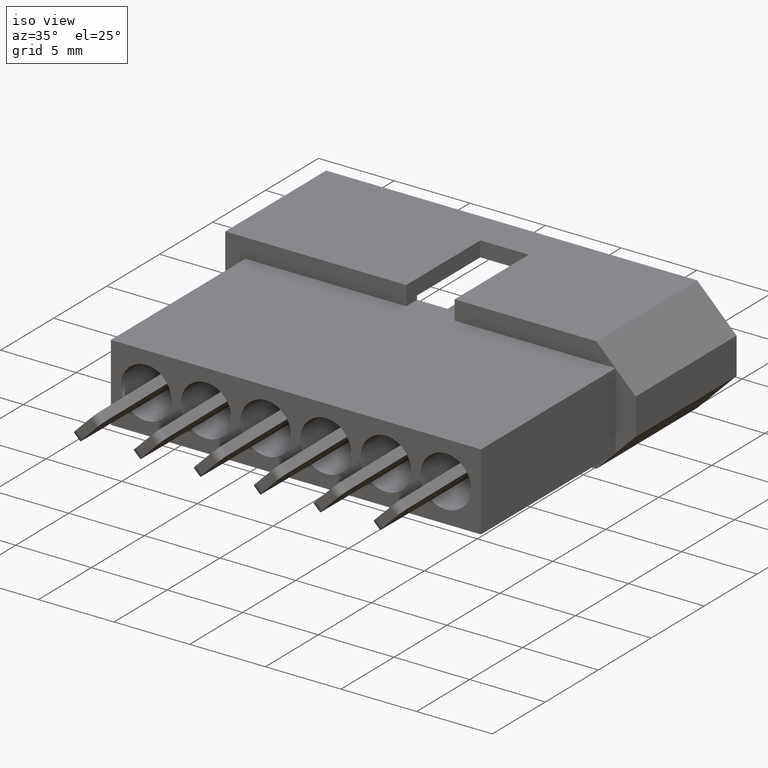
[diagram: clean part render]
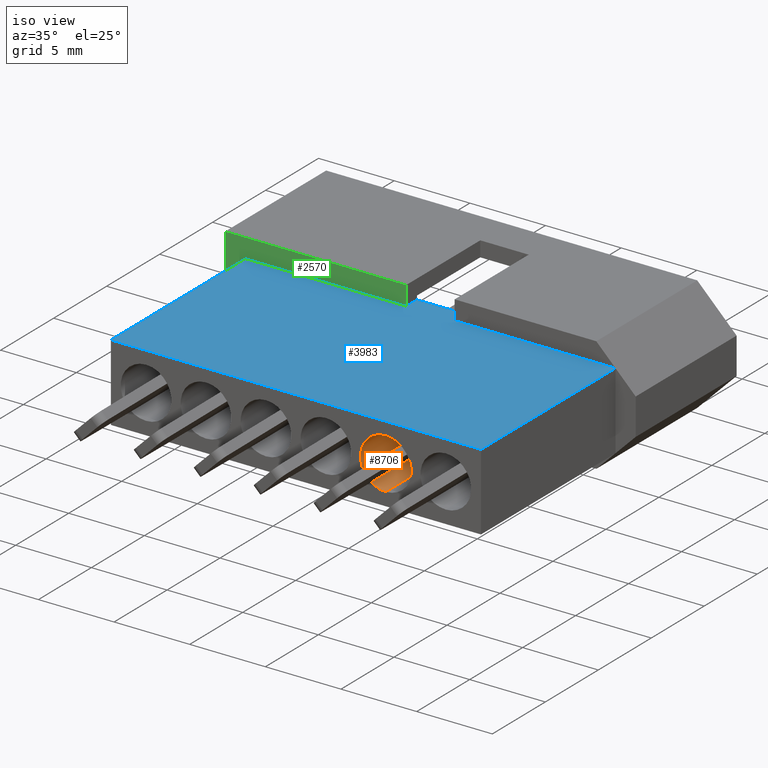
[diagram: same view with three faces highlighted in distinct colors, each labeled with its STEP entity id]
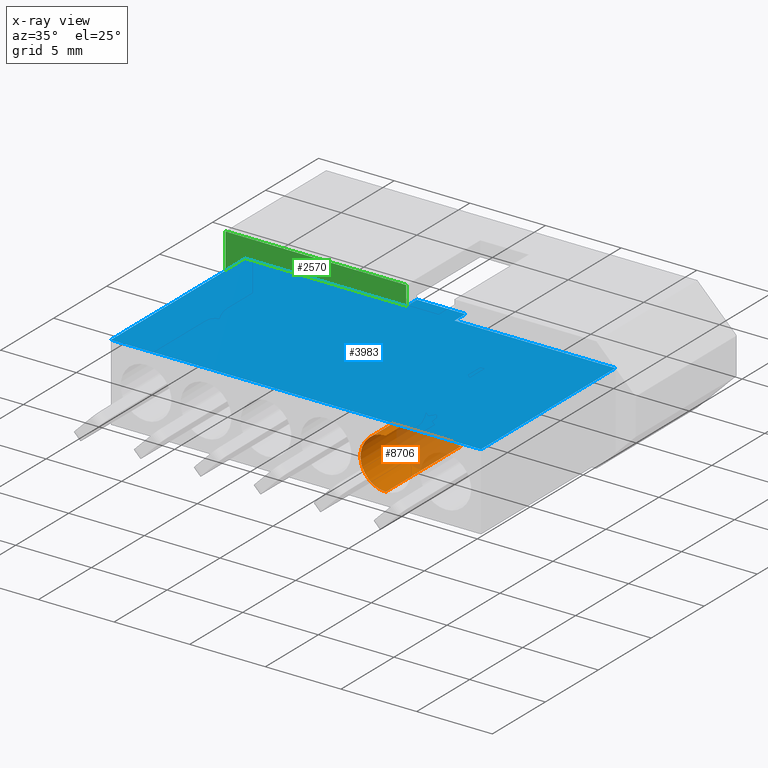
[diagram: x-ray of the same camera — body ghosted, the three highlighted faces saturated]
A machine part, iso view with three faces highlighted in distinct colors.
The next image is the same camera in x-ray (body ghosted, the three faces saturated) — at least one of them is partly hidden behind the body in this view.
Their STEP definitions:

[orange] entity #8706 — the highlighted cylindrical surface (edge-blend (fillet) strip) has radius 1.6764 mm, axis along (0, 1, 0).
#689 = VERTEX_POINT ( 'NONE', #4294 ) ;
#1301 = AXIS2_PLACEMENT_3D ( 'NONE', #4681, #1579, #6078 ) ;
#1579 = DIRECTION ( 'NONE',  ( -0.0000000000000000000, 1.000000000000000000, 1.232274823563231000E-016 ) ) ;
#1958 = DIRECTION ( 'NONE',  ( 0.0000000000000000000, 0.0000000000000000000, 1.000000000000000000 ) ) ;
#2630 = CIRCLE ( 'NONE', #1301, 1.676399999999999700 ) ;
#2684 = VERTEX_POINT ( 'NONE', #9080 ) ;
#2982 = CARTESIAN_POINT ( 'NONE',  ( 15.84959999999999900, -5.588000000000001000, -9.737026951175853700E-016 ) ) ;
#3110 = EDGE_LOOP ( 'NONE', ( #7104, #6249, #5355, #8156 ) ) ;
#3139 = AXIS2_PLACEMENT_3D ( 'NONE', #3407, #4778, #1958 ) ;
#3302 = CARTESIAN_POINT ( 'NONE',  ( 15.84959999999999900, 2.313668333221628800, 1.676399999999999700 ) ) ;
#3407 = CARTESIAN_POINT ( 'NONE',  ( 15.84959999999999900, 2.313668333221628800, 0.0000000000000000000 ) ) ;
#3471 = LINE ( 'NONE', #7409, #8153 ) ;
#3711 = DIRECTION ( 'NONE',  ( 0.0000000000000000000, 0.0000000000000000000, 1.000000000000000000 ) ) ;
#3860 = EDGE_CURVE ( 'NONE', #6942, #5809, #3471, .T. ) ;
#4124 = CIRCLE ( 'NONE', #4801, 1.676399999999999900 ) ;
#4127 = CARTESIAN_POINT ( 'NONE',  ( 15.84959999999999900, -5.588000000000001000, -1.676400000000000600 ) ) ;
#4294 = CARTESIAN_POINT ( 'NONE',  ( 15.84959999999999900, -5.588000000000001000, 1.676399999999999200 ) ) ;
#4663 = DIRECTION ( 'NONE',  ( -0.0000000000000000000, 1.000000000000000000, 1.232274823563231000E-016 ) ) ;
#4681 = CARTESIAN_POINT ( 'NONE',  ( 15.84959999999999900, -12.69999999999999900, -1.850096549635755000E-015 ) ) ;
#4778 = DIRECTION ( 'NONE',  ( -0.0000000000000000000, 1.000000000000000000, 1.232274823563231000E-016 ) ) ;
#4801 = AXIS2_PLACEMENT_3D ( 'NONE', #2982, #7964, #3711 ) ;
#5140 = EDGE_CURVE ( 'NONE', #5809, #689, #4124, .T. ) ;
#5355 = ORIENTED_EDGE ( 'NONE', *, *, #5140, .T. ) ;
#5809 = VERTEX_POINT ( 'NONE', #4127 ) ;
#6078 = DIRECTION ( 'NONE',  ( 0.0000000000000000000, 0.0000000000000000000, 1.000000000000000000 ) ) ;
#6111 = CYLINDRICAL_SURFACE ( 'NONE', #3139, 1.676399999999999700 ) ;
#6249 = ORIENTED_EDGE ( 'NONE', *, *, #3860, .T. ) ;
#6834 = EDGE_CURVE ( 'NONE', #2684, #689, #7005, .T. ) ;
#6942 = VERTEX_POINT ( 'NONE', #8434 ) ;
#7005 = LINE ( 'NONE', #3302, #7889 ) ;
#7104 = ORIENTED_EDGE ( 'NONE', *, *, #9001, .F. ) ;
#7409 = CARTESIAN_POINT ( 'NONE',  ( 15.84959999999999900, 2.313668333221628800, -1.676399999999999700 ) ) ;
#7889 = VECTOR ( 'NONE', #8277, 1000.000000000000000 ) ;
#7964 = DIRECTION ( 'NONE',  ( -0.0000000000000000000, 1.000000000000000000, 1.232274823563231000E-016 ) ) ;
#7983 = FACE_OUTER_BOUND ( 'NONE', #3110, .T. ) ;
#8153 = VECTOR ( 'NONE', #4663, 1000.000000000000000 ) ;
#8156 = ORIENTED_EDGE ( 'NONE', *, *, #6834, .F. ) ;
#8277 = DIRECTION ( 'NONE',  ( -0.0000000000000000000, 1.000000000000000000, 1.232274823563231000E-016 ) ) ;
#8434 = CARTESIAN_POINT ( 'NONE',  ( 15.84959999999999900, -12.69999999999999900, -1.676400000000001700 ) ) ;
#8706 = ADVANCED_FACE ( 'NONE', ( #7983 ), #6111, .F. ) ;
#9001 = EDGE_CURVE ( 'NONE', #6942, #2684, #2630, .T. ) ;
#9080 = CARTESIAN_POINT ( 'NONE',  ( 15.84959999999999900, -12.69999999999999900, 1.676399999999997900 ) ) ;

[blue] entity #3983 — the highlighted planar face has unit normal (0, 0, 1).
#53 = CARTESIAN_POINT ( 'NONE',  ( 11.50620000000000200, 1.015999999999999600, 2.539999999999999600 ) ) ;
#76 = DIRECTION ( 'NONE',  ( 1.000000000000000000, 0.0000000000000000000, 0.0000000000000000000 ) ) ;
#194 = DIRECTION ( 'NONE',  ( 0.0000000000000000000, 1.000000000000000000, 0.0000000000000000000 ) ) ;
#251 = VECTOR ( 'NONE', #3032, 1000.000000000000000 ) ;
#342 = DIRECTION ( 'NONE',  ( 1.000000000000000000, 0.0000000000000000000, 0.0000000000000000000 ) ) ;
#416 = LINE ( 'NONE', #4302, #729 ) ;
#691 = VERTEX_POINT ( 'NONE', #1391 ) ;
#692 = CARTESIAN_POINT ( 'NONE',  ( -2.324100000000000100, -12.69999999999999900, 2.540000000000000000 ) ) ;
#693 = LINE ( 'NONE', #8707, #251 ) ;
#729 = VECTOR ( 'NONE', #9218, 1000.000000000000000 ) ;
#730 = EDGE_CURVE ( 'NONE', #6080, #915, #1080, .T. ) ;
#915 = VERTEX_POINT ( 'NONE', #4080 ) ;
#1044 = CARTESIAN_POINT ( 'NONE',  ( 8.305799999999992500, 0.0000000000000000000, 2.540000000000000000 ) ) ;
#1080 = LINE ( 'NONE', #7389, #2081 ) ;
#1189 = LINE ( 'NONE', #8537, #4780 ) ;
#1375 = VECTOR ( 'NONE', #6408, 1000.000000000000000 ) ;
#1391 = CARTESIAN_POINT ( 'NONE',  ( 22.13610000000001300, 0.0000000000000000000, 2.539999999999999600 ) ) ;
#1521 = LINE ( 'NONE', #4566, #3321 ) ;
#1683 = VERTEX_POINT ( 'NONE', #1044 ) ;
#2009 = ORIENTED_EDGE ( 'NONE', *, *, #730, .F. ) ;
#2039 = VERTEX_POINT ( 'NONE', #53 ) ;
#2081 = VECTOR ( 'NONE', #194, 1000.000000000000000 ) ;
#2159 = CARTESIAN_POINT ( 'NONE',  ( 8.305799999999996100, 6.985000000000000300, 2.539999999999999600 ) ) ;
#2526 = EDGE_CURVE ( 'NONE', #4598, #2039, #693, .T. ) ;
#2552 = DIRECTION ( 'NONE',  ( 1.000000000000000000, 0.0000000000000000000, -0.0000000000000000000 ) ) ;
#3032 = DIRECTION ( 'NONE',  ( 1.000000000000000000, 0.0000000000000000000, 0.0000000000000000000 ) ) ;
#3321 = VECTOR ( 'NONE', #342, 1000.000000000000000 ) ;
#3370 = VECTOR ( 'NONE', #8263, 1000.000000000000000 ) ;
#3459 = ORIENTED_EDGE ( 'NONE', *, *, #5252, .T. ) ;
#3479 = ORIENTED_EDGE ( 'NONE', *, *, #8275, .F. ) ;
#3620 = EDGE_CURVE ( 'NONE', #5542, #2039, #4923, .T. ) ;
#3983 = ADVANCED_FACE ( 'NONE', ( #8812 ), #8324, .T. ) ;
#3991 = ORIENTED_EDGE ( 'NONE', *, *, #8625, .T. ) ;
#4080 = CARTESIAN_POINT ( 'NONE',  ( -2.324100000000000100, 0.0000000000000000000, 2.540000000000000000 ) ) ;
#4164 = EDGE_LOOP ( 'NONE', ( #3479, #2009, #3991, #4817, #9003, #6462, #8280, #3459 ) ) ;
#4302 = CARTESIAN_POINT ( 'NONE',  ( -2.324100000000000100, 0.0000000000000000000, 2.540000000000000000 ) ) ;
#4566 = CARTESIAN_POINT ( 'NONE',  ( -2.324100000000000100, -12.69999999999999900, 2.540000000000000000 ) ) ;
#4598 = VERTEX_POINT ( 'NONE', #8990 ) ;
#4679 = AXIS2_PLACEMENT_3D ( 'NONE', #9067, #6857, #2552 ) ;
#4733 = CARTESIAN_POINT ( 'NONE',  ( 11.50620000000000200, 3.919359615991196600E-016, 2.539999999999999600 ) ) ;
#4780 = VECTOR ( 'NONE', #76, 1000.000000000000000 ) ;
#4813 = CARTESIAN_POINT ( 'NONE',  ( 22.13609999999999900, -12.69999999999999900, 2.540000000000000000 ) ) ;
#4817 = ORIENTED_EDGE ( 'NONE', *, *, #5668, .T. ) ;
#4923 = LINE ( 'NONE', #5419, #3370 ) ;
#5252 = EDGE_CURVE ( 'NONE', #4598, #1683, #5634, .T. ) ;
#5419 = CARTESIAN_POINT ( 'NONE',  ( 11.50619999999999800, 6.985000000000000300, 2.539999999999999600 ) ) ;
#5542 = VERTEX_POINT ( 'NONE', #4733 ) ;
#5634 = LINE ( 'NONE', #2159, #1375 ) ;
#5668 = EDGE_CURVE ( 'NONE', #8657, #691, #6711, .T. ) ;
#6080 = VERTEX_POINT ( 'NONE', #692 ) ;
#6408 = DIRECTION ( 'NONE',  ( -2.483498176058421200E-016, -1.000000000000000000, 0.0000000000000000000 ) ) ;
#6462 = ORIENTED_EDGE ( 'NONE', *, *, #3620, .T. ) ;
#6711 = LINE ( 'NONE', #6850, #7018 ) ;
#6850 = CARTESIAN_POINT ( 'NONE',  ( 22.13609999999999900, -12.69999999999999900, 2.540000000000000000 ) ) ;
#6857 = DIRECTION ( 'NONE',  ( 0.0000000000000000000, 0.0000000000000000000, 1.000000000000000000 ) ) ;
#7018 = VECTOR ( 'NONE', #7517, 1000.000000000000000 ) ;
#7389 = CARTESIAN_POINT ( 'NONE',  ( -2.324100000000000100, -12.69999999999999900, 2.540000000000000000 ) ) ;
#7487 = EDGE_CURVE ( 'NONE', #5542, #691, #1189, .T. ) ;
#7517 = DIRECTION ( 'NONE',  ( 0.0000000000000000000, 1.000000000000000000, 0.0000000000000000000 ) ) ;
#8263 = DIRECTION ( 'NONE',  ( -4.966996352116842500E-016, 1.000000000000000000, -0.0000000000000000000 ) ) ;
#8275 = EDGE_CURVE ( 'NONE', #915, #1683, #416, .T. ) ;
#8280 = ORIENTED_EDGE ( 'NONE', *, *, #2526, .F. ) ;
#8324 = PLANE ( 'NONE',  #4679 ) ;
#8537 = CARTESIAN_POINT ( 'NONE',  ( -2.324100000000000100, 0.0000000000000000000, 2.540000000000000000 ) ) ;
#8625 = EDGE_CURVE ( 'NONE', #6080, #8657, #1521, .T. ) ;
#8657 = VERTEX_POINT ( 'NONE', #4813 ) ;
#8707 = CARTESIAN_POINT ( 'NONE',  ( 0.0000000000000000000, 1.015999999999999600, 2.539999999999999600 ) ) ;
#8812 = FACE_OUTER_BOUND ( 'NONE', #4164, .T. ) ;
#8990 = CARTESIAN_POINT ( 'NONE',  ( 8.305799999999994300, 1.015999999999999600, 2.539999999999999600 ) ) ;
#9003 = ORIENTED_EDGE ( 'NONE', *, *, #7487, .F. ) ;
#9067 = CARTESIAN_POINT ( 'NONE',  ( -2.324100000000000100, -12.69999999999999900, 2.540000000000000000 ) ) ;
#9218 = DIRECTION ( 'NONE',  ( 1.000000000000000000, 0.0000000000000000000, 0.0000000000000000000 ) ) ;

[green] entity #2570 — the highlighted planar face has unit normal (0, 1, 0).
#226 = CARTESIAN_POINT ( 'NONE',  ( 8.305799999999994300, 0.0000000000000000000, -2.539999999999999600 ) ) ;
#239 = ORIENTED_EDGE ( 'NONE', *, *, #1646, .F. ) ;
#416 = LINE ( 'NONE', #4302, #729 ) ;
#425 = VECTOR ( 'NONE', #7582, 1000.000000000000000 ) ;
#729 = VECTOR ( 'NONE', #9218, 1000.000000000000000 ) ;
#915 = VERTEX_POINT ( 'NONE', #4080 ) ;
#1003 = CARTESIAN_POINT ( 'NONE',  ( 8.305799999999994300, 0.0000000000000000000, 2.539999999999999600 ) ) ;
#1005 = VECTOR ( 'NONE', #6575, 1000.000000000000000 ) ;
#1044 = CARTESIAN_POINT ( 'NONE',  ( 8.305799999999992500, 0.0000000000000000000, 2.540000000000000000 ) ) ;
#1176 = ORIENTED_EDGE ( 'NONE', *, *, #1666, .F. ) ;
#1215 = EDGE_CURVE ( 'NONE', #2578, #2681, #7415, .T. ) ;
#1229 = VERTEX_POINT ( 'NONE', #3845 ) ;
#1302 = LINE ( 'NONE', #6299, #8671 ) ;
#1580 = DIRECTION ( 'NONE',  ( 0.0000000000000000000, 0.0000000000000000000, 1.000000000000000000 ) ) ;
#1646 = EDGE_CURVE ( 'NONE', #7424, #2727, #8146, .T. ) ;
#1666 = EDGE_CURVE ( 'NONE', #2727, #1229, #2224, .T. ) ;
#1683 = VERTEX_POINT ( 'NONE', #1044 ) ;
#1714 = DIRECTION ( 'NONE',  ( -0.0000000000000000000, -0.0000000000000000000, -1.000000000000000000 ) ) ;
#1782 = VECTOR ( 'NONE', #3051, 1000.000000000000000 ) ;
#2224 = LINE ( 'NONE', #7211, #1005 ) ;
#2328 = LINE ( 'NONE', #4166, #425 ) ;
#2570 = ADVANCED_FACE ( 'NONE', ( #8617 ), #7326, .F. ) ;
#2578 = VERTEX_POINT ( 'NONE', #226 ) ;
#2681 = VERTEX_POINT ( 'NONE', #7633 ) ;
#2727 = VERTEX_POINT ( 'NONE', #5115 ) ;
#3051 = DIRECTION ( 'NONE',  ( -0.0000000000000000000, -0.0000000000000000000, 1.000000000000000000 ) ) ;
#3057 = CARTESIAN_POINT ( 'NONE',  ( 0.0000000000000000000, 0.0000000000000000000, 0.0000000000000000000 ) ) ;
#3158 = EDGE_CURVE ( 'NONE', #2681, #7424, #5728, .T. ) ;
#3614 = ORIENTED_EDGE ( 'NONE', *, *, #1215, .F. ) ;
#3786 = DIRECTION ( 'NONE',  ( 0.0000000000000000000, 1.000000000000000000, 0.0000000000000000000 ) ) ;
#3788 = ORIENTED_EDGE ( 'NONE', *, *, #5066, .T. ) ;
#3826 = VECTOR ( 'NONE', #8400, 1000.000000000000000 ) ;
#3845 = CARTESIAN_POINT ( 'NONE',  ( 8.305799999999994300, 0.0000000000000000000, 3.809999999999999600 ) ) ;
#3846 = VERTEX_POINT ( 'NONE', #6723 ) ;
#4001 = VECTOR ( 'NONE', #1714, 1000.000000000000000 ) ;
#4080 = CARTESIAN_POINT ( 'NONE',  ( -2.324100000000000100, 0.0000000000000000000, 2.540000000000000000 ) ) ;
#4166 = CARTESIAN_POINT ( 'NONE',  ( -2.324100000000000100, 0.0000000000000000000, -2.540000000000000000 ) ) ;
#4280 = ORIENTED_EDGE ( 'NONE', *, *, #8275, .T. ) ;
#4302 = CARTESIAN_POINT ( 'NONE',  ( -2.324100000000000100, 0.0000000000000000000, 2.540000000000000000 ) ) ;
#4826 = CARTESIAN_POINT ( 'NONE',  ( -3.657600000000000400, 0.0000000000000000000, -3.809999999999999600 ) ) ;
#5066 = EDGE_CURVE ( 'NONE', #2578, #3846, #2328, .T. ) ;
#5115 = CARTESIAN_POINT ( 'NONE',  ( -3.657600000000000400, 0.0000000000000000000, 3.809999999999999600 ) ) ;
#5728 = LINE ( 'NONE', #4826, #3826 ) ;
#5907 = CARTESIAN_POINT ( 'NONE',  ( 8.305799999999994300, 0.0000000000000000000, -2.539999999999999600 ) ) ;
#6170 = AXIS2_PLACEMENT_3D ( 'NONE', #3057, #3786, #6595 ) ;
#6299 = CARTESIAN_POINT ( 'NONE',  ( -2.324100000000000100, 0.0000000000000000000, -2.540000000000000000 ) ) ;
#6324 = EDGE_CURVE ( 'NONE', #1683, #1229, #7787, .T. ) ;
#6454 = ORIENTED_EDGE ( 'NONE', *, *, #8864, .T. ) ;
#6575 = DIRECTION ( 'NONE',  ( 1.000000000000000000, 0.0000000000000000000, 0.0000000000000000000 ) ) ;
#6595 = DIRECTION ( 'NONE',  ( 0.0000000000000000000, -0.0000000000000000000, 1.000000000000000000 ) ) ;
#6723 = CARTESIAN_POINT ( 'NONE',  ( -2.324100000000000100, 0.0000000000000000000, -2.540000000000000000 ) ) ;
#6971 = DIRECTION ( 'NONE',  ( 0.0000000000000000000, 0.0000000000000000000, 1.000000000000000000 ) ) ;
#7211 = CARTESIAN_POINT ( 'NONE',  ( -3.657600000000000400, 0.0000000000000000000, 3.809999999999999600 ) ) ;
#7237 = VECTOR ( 'NONE', #1580, 1000.000000000000000 ) ;
#7326 = PLANE ( 'NONE',  #6170 ) ;
#7415 = LINE ( 'NONE', #5907, #4001 ) ;
#7424 = VERTEX_POINT ( 'NONE', #8435 ) ;
#7582 = DIRECTION ( 'NONE',  ( -1.000000000000000000, -0.0000000000000000000, -0.0000000000000000000 ) ) ;
#7633 = CARTESIAN_POINT ( 'NONE',  ( 8.305799999999994300, 0.0000000000000000000, -3.809999999999999600 ) ) ;
#7787 = LINE ( 'NONE', #1003, #1782 ) ;
#7845 = ORIENTED_EDGE ( 'NONE', *, *, #6324, .T. ) ;
#8080 = EDGE_LOOP ( 'NONE', ( #3614, #3788, #6454, #4280, #7845, #1176, #239, #8715 ) ) ;
#8146 = LINE ( 'NONE', #8660, #7237 ) ;
#8275 = EDGE_CURVE ( 'NONE', #915, #1683, #416, .T. ) ;
#8400 = DIRECTION ( 'NONE',  ( -1.000000000000000000, -0.0000000000000000000, -0.0000000000000000000 ) ) ;
#8435 = CARTESIAN_POINT ( 'NONE',  ( -3.657600000000000400, 0.0000000000000000000, -3.809999999999999600 ) ) ;
#8617 = FACE_OUTER_BOUND ( 'NONE', #8080, .T. ) ;
#8660 = CARTESIAN_POINT ( 'NONE',  ( -3.657600000000000400, 0.0000000000000000000, -3.809999999999999600 ) ) ;
#8671 = VECTOR ( 'NONE', #6971, 1000.000000000000000 ) ;
#8715 = ORIENTED_EDGE ( 'NONE', *, *, #3158, .F. ) ;
#8864 = EDGE_CURVE ( 'NONE', #3846, #915, #1302, .T. ) ;
#9218 = DIRECTION ( 'NONE',  ( 1.000000000000000000, 0.0000000000000000000, 0.0000000000000000000 ) ) ;